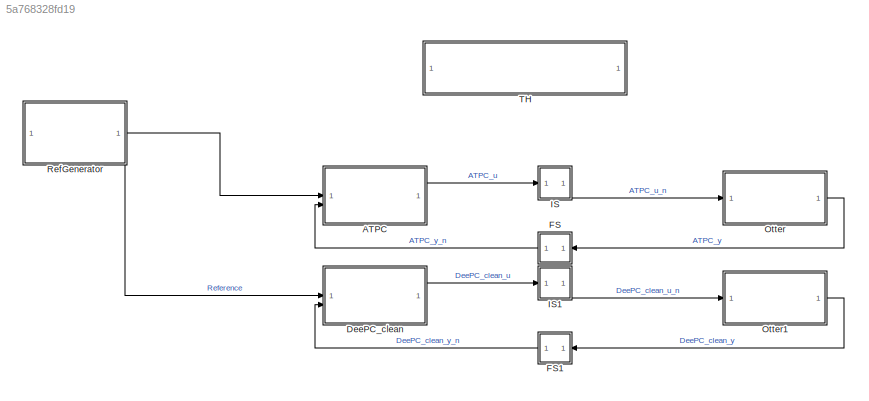
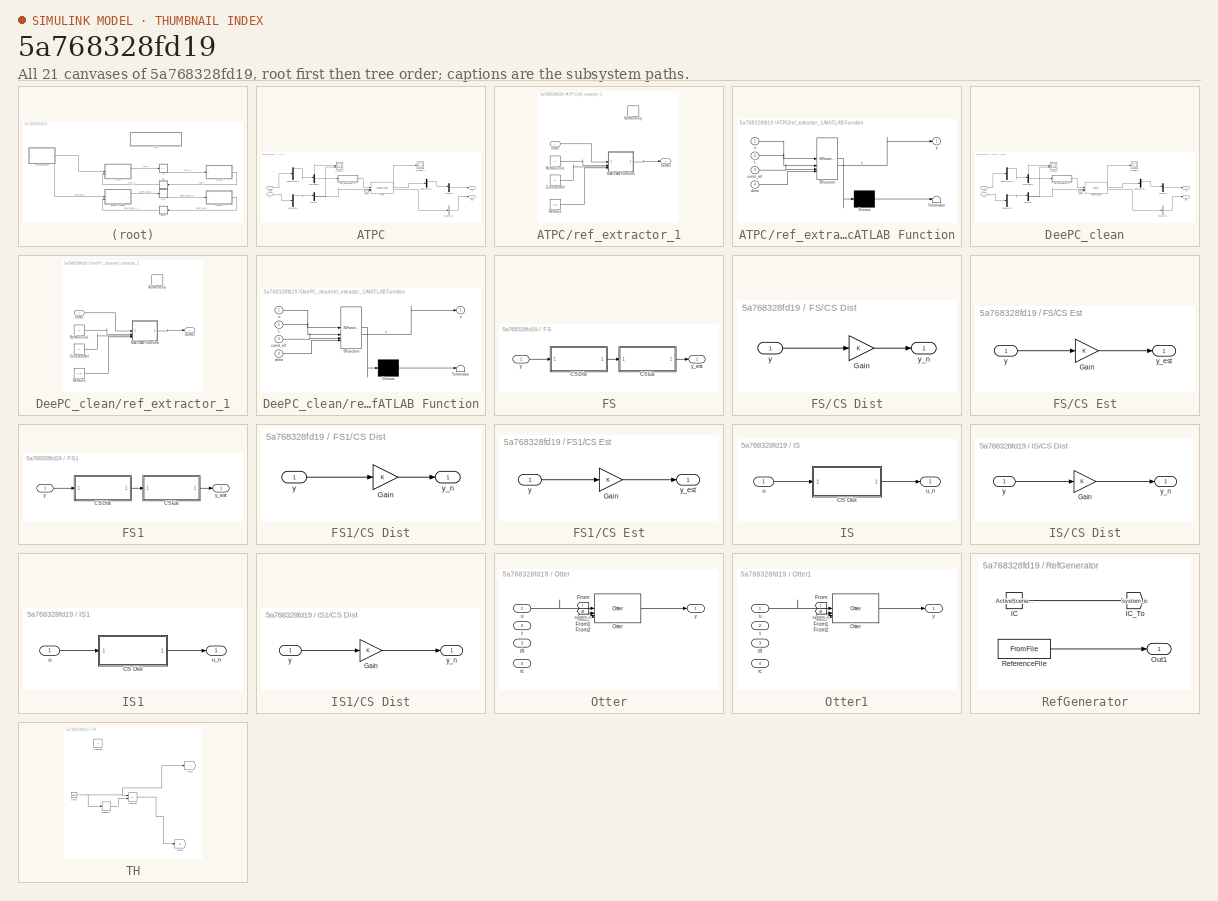
[diagram: thumbnail index - all 21 canvases of the model, root first then tree order]
MODEL slx_5a768328fd19
KIND model
CONFIG AbsTol = auto
CONFIG EnableMultiTasking = off
CONFIG FixedStep = 0.05
CONFIG InitFcn = on_model_start
CONFIG MaxStep = auto
CONFIG MinStep = auto
CONFIG PostLoadFcn = on_model_load
CONFIG RelTol = 1e-3
CONFIG SampleTimeConstraint = Unconstrained
CONFIG SolverName = FixedStepAuto
CONFIG StartTime = 0.0
CONFIG StopFcn = on_simulation_done
CONFIG StopTime = 10.0
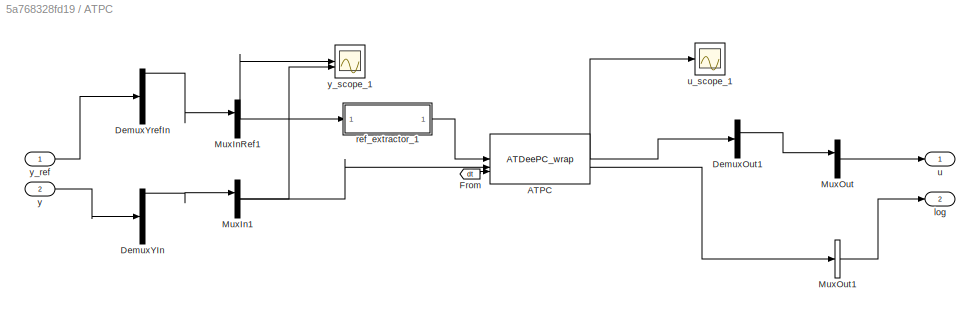
BLOCK [SubSystem] ATPC
  Tag = __cs_template;__cs_comptype:ctl
BLOCK [Reference] ATPC/ATPC  REF=data_driven_lib_ctl/ATDeePC_wrap
  SourceBlock = data_driven_lib_ctl/ATDeePC_wrap
  Tag = controller;__cs_comptype:ctl;__cs_compimpl:slx;
BLOCK [Demux] ATPC/DemuxOut1
  Outputs = 1
BLOCK [Demux] ATPC/DemuxYIn
  Outputs = 12
BLOCK [Demux] ATPC/DemuxYrefIn
  Outputs = 12
BLOCK [From] ATPC/From
  GotoTag = dt
  TagVisibility = global
BLOCK [Mux] ATPC/MuxIn1
  DisplayOption = bar
  Inputs = 1
BLOCK [Mux] ATPC/MuxInRef1
  DisplayOption = bar
  Inputs = 1
BLOCK [Mux] ATPC/MuxOut
  DisplayOption = bar
  Inputs = 2
BLOCK [BusCreator] ATPC/MuxOut1
  DisplayOption = bar
  InheritFromInputs = on
  Inputs = 1
BLOCK [Outport] ATPC/log
  Port = 2
BLOCK [SubSystem] ATPC/ref_extractor_1
BLOCK [Constant] ATPC/ref_extractor_1/ConstantRef
  Value = 0
BLOCK [Inport] ATPC/ref_extractor_1/InRef
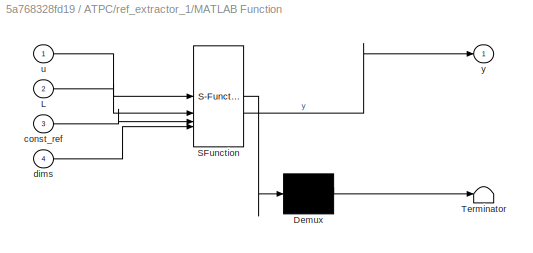
BLOCK [SubSystem] ATPC/ref_extractor_1/MATLAB Function
  ErrorFcn = Stateflow.Translate.translate
  PermitHierarchicalResolution = ExplicitOnly
  SFBlockType = MATLAB Function
  TreatAsAtomicUnit = on
BLOCK [Demux] ATPC/ref_extractor_1/MATLAB Function/ Demux 
  Outputs = 1
BLOCK [S-Function] ATPC/ref_extractor_1/MATLAB Function/ SFunction 
  EnableBusSupport = off
  FunctionName = sf_sfun
  Parameters = GlobalReference
  PortCounts = [4 2]
  SFcnIsStateOwnerBlock = off
  SFunctionDeploymentMode = off
  Tag = Stateflow S-Function 7
BLOCK [Terminator] ATPC/ref_extractor_1/MATLAB Function/ Terminator 
BLOCK [Inport] ATPC/ref_extractor_1/MATLAB Function/L
  Port = 2
BLOCK [Inport] ATPC/ref_extractor_1/MATLAB Function/const_ref
  Port = 3
BLOCK [Inport] ATPC/ref_extractor_1/MATLAB Function/dims
  Port = 4
BLOCK [Inport] ATPC/ref_extractor_1/MATLAB Function/u
BLOCK [Outport] ATPC/ref_extractor_1/MATLAB Function/y
BLOCK [Outport] ATPC/ref_extractor_1/OutRef
BLOCK [Constant] ATPC/ref_extractor_1/RefDims
  Value = [1 2]
BLOCK [Constant] ATPC/ref_extractor_1/RefHorizonL
BLOCK [DataStoreMemory] ATPC/ref_extractor_1/RefMemory
  DataStoreName = ref
  OutDataTypeStr = double
  ShowAdditionalParam = off
  SignalType = real
  WriteAfterWriteMsg = warning
BLOCK [Outport] ATPC/u
  PortDimensions = 2
BLOCK [Scope] ATPC/u_scope_1
  Floating = off
  NumInputPorts = 1
BLOCK [Inport] ATPC/y
  Port = 2
  PortDimensions = 12
BLOCK [Inport] ATPC/y_ref
  PortDimensions = 12
BLOCK [Scope] ATPC/y_scope_1
  Floating = off
  NumInputPorts = 2
BLOCK [SubSystem] DeePC_clean
  Tag = __cs_template;__cs_comptype:ctl
BLOCK [Reference] DeePC_clean/DeePC_clean  REF=data_driven_lib_ctl/DeePC
  SourceBlock = data_driven_lib_ctl/DeePC
  Tag = __cs_comptype:ctl;__cs_compimpl:mat;
BLOCK [Demux] DeePC_clean/DemuxOut1
  Outputs = 1
BLOCK [Demux] DeePC_clean/DemuxYIn
  Outputs = 12
BLOCK [Demux] DeePC_clean/DemuxYrefIn
  Outputs = 12
BLOCK [From] DeePC_clean/From
  GotoTag = dt
  TagVisibility = global
BLOCK [Mux] DeePC_clean/MuxIn1
  DisplayOption = bar
  Inputs = 1
BLOCK [Mux] DeePC_clean/MuxInRef1
  DisplayOption = bar
  Inputs = 1
BLOCK [Mux] DeePC_clean/MuxOut
  DisplayOption = bar
  Inputs = 2
BLOCK [BusCreator] DeePC_clean/MuxOut1
  DisplayOption = bar
  InheritFromInputs = on
  Inputs = 1
BLOCK [Outport] DeePC_clean/log
  Port = 2
BLOCK [SubSystem] DeePC_clean/ref_extractor_1
BLOCK [Constant] DeePC_clean/ref_extractor_1/ConstantRef
  Value = 0
BLOCK [Inport] DeePC_clean/ref_extractor_1/InRef
BLOCK [SubSystem] DeePC_clean/ref_extractor_1/MATLAB Function
  ErrorFcn = Stateflow.Translate.translate
  PermitHierarchicalResolution = ExplicitOnly
  SFBlockType = MATLAB Function
  TreatAsAtomicUnit = on
BLOCK [Demux] DeePC_clean/ref_extractor_1/MATLAB Function/ Demux 
  Outputs = 1
BLOCK [S-Function] DeePC_clean/ref_extractor_1/MATLAB Function/ SFunction 
  EnableBusSupport = off
  FunctionName = sf_sfun
  Parameters = GlobalReference
  PortCounts = [4 2]
  SFcnIsStateOwnerBlock = off
  SFunctionDeploymentMode = off
  Tag = Stateflow S-Function 1
BLOCK [Terminator] DeePC_clean/ref_extractor_1/MATLAB Function/ Terminator 
BLOCK [Inport] DeePC_clean/ref_extractor_1/MATLAB Function/L
  Port = 2
BLOCK [Inport] DeePC_clean/ref_extractor_1/MATLAB Function/const_ref
  Port = 3
BLOCK [Inport] DeePC_clean/ref_extractor_1/MATLAB Function/dims
  Port = 4
BLOCK [Inport] DeePC_clean/ref_extractor_1/MATLAB Function/u
BLOCK [Outport] DeePC_clean/ref_extractor_1/MATLAB Function/y
BLOCK [Outport] DeePC_clean/ref_extractor_1/OutRef
BLOCK [Constant] DeePC_clean/ref_extractor_1/RefDims
  Value = [1 2]
BLOCK [Constant] DeePC_clean/ref_extractor_1/RefHorizonL
BLOCK [DataStoreMemory] DeePC_clean/ref_extractor_1/RefMemory
  DataStoreName = ref
  OutDataTypeStr = double
  ShowAdditionalParam = off
  SignalType = real
  WriteAfterWriteMsg = warning
BLOCK [Outport] DeePC_clean/u
  PortDimensions = 2
BLOCK [Scope] DeePC_clean/u_scope_1
  Floating = off
  NumInputPorts = 1
BLOCK [Inport] DeePC_clean/y
  Port = 2
  PortDimensions = 12
BLOCK [Inport] DeePC_clean/y_ref
  PortDimensions = 12
BLOCK [Scope] DeePC_clean/y_scope_1
  Floating = off
  NumInputPorts = 2
BLOCK [SubSystem] FS
  NameLocation = top
BLOCK [SubSystem] FS/CS Dist
BLOCK [Gain] FS/CS Dist/Gain
BLOCK [Inport] FS/CS Dist/y
BLOCK [Outport] FS/CS Dist/y_n
BLOCK [SubSystem] FS/CS Est
BLOCK [Gain] FS/CS Est/Gain
BLOCK [Inport] FS/CS Est/y
BLOCK [Outport] FS/CS Est/y_est
BLOCK [Inport] FS/y
BLOCK [Outport] FS/y_est
BLOCK [SubSystem] FS1
  NameLocation = top
BLOCK [SubSystem] FS1/CS Dist
BLOCK [Gain] FS1/CS Dist/Gain
BLOCK [Inport] FS1/CS Dist/y
BLOCK [Outport] FS1/CS Dist/y_n
BLOCK [SubSystem] FS1/CS Est
BLOCK [Gain] FS1/CS Est/Gain
BLOCK [Inport] FS1/CS Est/y
BLOCK [Outport] FS1/CS Est/y_est
BLOCK [Inport] FS1/y
BLOCK [Outport] FS1/y_est
BLOCK [SubSystem] IS
BLOCK [SubSystem] IS/CS Dist
BLOCK [Gain] IS/CS Dist/Gain
BLOCK [Inport] IS/CS Dist/y
BLOCK [Outport] IS/CS Dist/y_n
BLOCK [Inport] IS/u
BLOCK [Outport] IS/u_n
BLOCK [SubSystem] IS1
BLOCK [SubSystem] IS1/CS Dist
BLOCK [Gain] IS1/CS Dist/Gain
BLOCK [Inport] IS1/CS Dist/y
BLOCK [Outport] IS1/CS Dist/y_n
BLOCK [Inport] IS1/u
BLOCK [Outport] IS1/u_n
BLOCK [SubSystem] Otter
  Tag = __cs_template;__cs_comptype:sys
BLOCK [From] Otter/From
  GotoTag = t
  TagVisibility = global
BLOCK [From] Otter/From1
  GotoTag = dt
  TagVisibility = global
BLOCK [From] Otter/From2
  GotoTag = system_ic
  TagVisibility = global
BLOCK [Reference] Otter/Otter  REF=marine_lib_sys/Otter
  SourceBlock = marine_lib_sys/Otter
  Tag = system;__cs_slx_sys;__cs_comptype:sys;__cs_compimpl:slx;
BLOCK [Inport] Otter/dt
  Port = 3
BLOCK [Inport] Otter/ic
  Port = 4
BLOCK [Inport] Otter/t
  Port = 2
BLOCK [Inport] Otter/u
BLOCK [Outport] Otter/y
BLOCK [SubSystem] Otter1
  Tag = __cs_template;__cs_comptype:sys
BLOCK [From] Otter1/From
  GotoTag = t
  TagVisibility = global
BLOCK [From] Otter1/From1
  GotoTag = dt
  TagVisibility = global
BLOCK [From] Otter1/From2
  GotoTag = system_ic
  TagVisibility = global
BLOCK [Reference] Otter1/Otter  REF=marine_lib_sys/Otter
  SourceBlock = marine_lib_sys/Otter
  Tag = system;__cs_slx_sys;__cs_comptype:sys;__cs_compimpl:slx;
BLOCK [Inport] Otter1/dt
  Port = 3
BLOCK [Inport] Otter1/ic
  Port = 4
BLOCK [Inport] Otter1/t
  Port = 2
BLOCK [Inport] Otter1/u
BLOCK [Outport] Otter1/y
BLOCK [SubSystem] RefGenerator
  OpenFcn = on_reference_generator_open();
BLOCK [Constant] RefGenerator/IC
  Value = ActiveScenario.SystemIc
BLOCK [Goto] RefGenerator/IC_To
  GotoTag = system_ic
  TagVisibility = global
BLOCK [Outport] RefGenerator/Out1
BLOCK [FromFile] RefGenerator/ReferenceFile
  SampleTime = 0
BLOCK [SubSystem] TH
BLOCK [Clock] TH/Clock
BLOCK [Constant] TH/Constant
BLOCK [Goto] TH/Goto
  GotoTag = t
  TagVisibility = global
BLOCK [Goto] TH/Goto1
  GotoTag = dt
  TagVisibility = global
BLOCK [Memory] TH/Memory
BLOCK [Sum] TH/Subtract
  IconShape = rectangular
  Inputs = +-
NET ATPC/ATPC:1 -> ATPC/DemuxOut1:1, ATPC/u_scope_1:1
LINE ATPC/ATPC:2 -> ATPC/MuxOut1:1
LINE ATPC/DemuxOut1:1 -> ATPC/MuxOut:1
LINE ATPC/DemuxYIn:1 -> ATPC/MuxIn1:1
LINE ATPC/DemuxYrefIn:1 -> ATPC/MuxInRef1:1
LINE ATPC/From:1 -> ATPC/ATPC:3
NET ATPC/MuxIn1:1 -> ATPC/ATPC:2, ATPC/y_scope_1:2
NET ATPC/MuxInRef1:1 -> ATPC/ref_extractor_1:1, ATPC/y_scope_1:1
LINE ATPC/MuxOut1:1 -> ATPC/log:1
LINE ATPC/MuxOut:1 -> ATPC/u:1
LINE ATPC/ref_extractor_1/ConstantRef:1 -> ATPC/ref_extractor_1/MATLAB Function:3
LINE ATPC/ref_extractor_1/InRef:1 -> ATPC/ref_extractor_1/MATLAB Function:1
LINE ATPC/ref_extractor_1/MATLAB Function:1 -> ATPC/ref_extractor_1/OutRef:1
LINE ATPC/ref_extractor_1/RefDims:1 -> ATPC/ref_extractor_1/MATLAB Function:4
LINE ATPC/ref_extractor_1/RefHorizonL:1 -> ATPC/ref_extractor_1/MATLAB Function:2
LINE ATPC/ref_extractor_1:1 -> ATPC/ATPC:1
LINE ATPC/y:1 -> ATPC/DemuxYIn:1
LINE ATPC/y_ref:1 -> ATPC/DemuxYrefIn:1
LINE ATPC:1 -> IS:1
NET DeePC_clean/DeePC_clean:1 -> DeePC_clean/DemuxOut1:1, DeePC_clean/u_scope_1:1
LINE DeePC_clean/DeePC_clean:2 -> DeePC_clean/MuxOut1:1
LINE DeePC_clean/DemuxOut1:1 -> DeePC_clean/MuxOut:1
LINE DeePC_clean/DemuxYIn:1 -> DeePC_clean/MuxIn1:1
LINE DeePC_clean/DemuxYrefIn:1 -> DeePC_clean/MuxInRef1:1
LINE DeePC_clean/From:1 -> DeePC_clean/DeePC_clean:3
NET DeePC_clean/MuxIn1:1 -> DeePC_clean/DeePC_clean:2, DeePC_clean/y_scope_1:2
NET DeePC_clean/MuxInRef1:1 -> DeePC_clean/ref_extractor_1:1, DeePC_clean/y_scope_1:1
LINE DeePC_clean/MuxOut1:1 -> DeePC_clean/log:1
LINE DeePC_clean/MuxOut:1 -> DeePC_clean/u:1
LINE DeePC_clean/ref_extractor_1/ConstantRef:1 -> DeePC_clean/ref_extractor_1/MATLAB Function:3
LINE DeePC_clean/ref_extractor_1/InRef:1 -> DeePC_clean/ref_extractor_1/MATLAB Function:1
LINE DeePC_clean/ref_extractor_1/MATLAB Function:1 -> DeePC_clean/ref_extractor_1/OutRef:1
LINE DeePC_clean/ref_extractor_1/RefDims:1 -> DeePC_clean/ref_extractor_1/MATLAB Function:4
LINE DeePC_clean/ref_extractor_1/RefHorizonL:1 -> DeePC_clean/ref_extractor_1/MATLAB Function:2
LINE DeePC_clean/ref_extractor_1:1 -> DeePC_clean/DeePC_clean:1
LINE DeePC_clean/y:1 -> DeePC_clean/DemuxYIn:1
LINE DeePC_clean/y_ref:1 -> DeePC_clean/DemuxYrefIn:1
LINE DeePC_clean:1 -> IS1:1
LINE FS/CS Dist/Gain:1 -> FS/CS Dist/y_n:1
LINE FS/CS Dist/y:1 -> FS/CS Dist/Gain:1
LINE FS/CS Dist:1 -> FS/CS Est:1
LINE FS/CS Est/Gain:1 -> FS/CS Est/y_est:1
LINE FS/CS Est/y:1 -> FS/CS Est/Gain:1
LINE FS/CS Est:1 -> FS/y_est:1
LINE FS/y:1 -> FS/CS Dist:1
LINE FS1/CS Dist/Gain:1 -> FS1/CS Dist/y_n:1
LINE FS1/CS Dist/y:1 -> FS1/CS Dist/Gain:1
LINE FS1/CS Dist:1 -> FS1/CS Est:1
LINE FS1/CS Est/Gain:1 -> FS1/CS Est/y_est:1
LINE FS1/CS Est/y:1 -> FS1/CS Est/Gain:1
LINE FS1/CS Est:1 -> FS1/y_est:1
LINE FS1/y:1 -> FS1/CS Dist:1
LINE FS1:1 -> DeePC_clean:2
LINE FS:1 -> ATPC:2
LINE IS/CS Dist/Gain:1 -> IS/CS Dist/y_n:1
LINE IS/CS Dist/y:1 -> IS/CS Dist/Gain:1
LINE IS/CS Dist:1 -> IS/u_n:1
LINE IS/u:1 -> IS/CS Dist:1
LINE IS1/CS Dist/Gain:1 -> IS1/CS Dist/y_n:1
LINE IS1/CS Dist/y:1 -> IS1/CS Dist/Gain:1
LINE IS1/CS Dist:1 -> IS1/u_n:1
LINE IS1/u:1 -> IS1/CS Dist:1
LINE IS1:1 -> Otter1:1
LINE IS:1 -> Otter:1
LINE Otter/From1:1 -> Otter/Otter:3
LINE Otter/From2:1 -> Otter/Otter:4
LINE Otter/From:1 -> Otter/Otter:2
LINE Otter/Otter:1 -> Otter/y:1
LINE Otter/u:1 -> Otter/Otter:1
LINE Otter1/From1:1 -> Otter1/Otter:3
LINE Otter1/From2:1 -> Otter1/Otter:4
LINE Otter1/From:1 -> Otter1/Otter:2
LINE Otter1/Otter:1 -> Otter1/y:1
LINE Otter1/u:1 -> Otter1/Otter:1
LINE Otter1:1 -> FS1:1
LINE Otter:1 -> FS:1
LINE RefGenerator/IC:1 -> RefGenerator/IC_To:1
LINE RefGenerator/ReferenceFile:1 -> RefGenerator/Out1:1
NET RefGenerator:1 -> ATPC:1, DeePC_clean:1
NET TH/Clock:1 -> TH/Goto:1, TH/Memory:1, TH/Subtract:1
LINE TH/Memory:1 -> TH/Subtract:2
LINE TH/Subtract:1 -> TH/Goto1:1
note: NET lines group one-source signal fan-out (src -> all destinations, sorted); 1:1 wires keep LINE
CHART DeePC_clean/ref_extractor_1/MATLAB Function states=1 transitions=1
  STATE_LABEL 'eML_blk_kernel()'
  STATE_LABEL "SCRIPT:\nfunction y = fcn(u, L, const_ref, dims, GlobalReference)\n\npersistent cnt\nglobal ref\n\nif isempty(cnt)\n    cnt = 0;\nend\n\nif GlobalReference == 0\n    y = repmat(u', 1);\n    return;\nend\n\n\ncnt = cnt+1;\n\nhorizon_end = cnt+L-1;\nif L > 1 \n   if horizon_end > length(GlobalReference)\n        if size(ref, 1) == size(u, 1)\n            y = permute(ref, [2, 1]);\n        else\n            y = ref;\n       ...<+621ch>"
CHART ATPC/ref_extractor_1/MATLAB Function states=1 transitions=1
  STATE_LABEL 'eML_blk_kernel()'
  STATE_LABEL "SCRIPT:\nfunction y = fcn(u, L, const_ref, dims, GlobalReference)\n\npersistent cnt\nglobal ref\n\nif isempty(cnt)\n    cnt = 0;\nend\n\nif GlobalReference == 0\n    y = repmat(u', 1);\n    return;\nend\n\n\ncnt = cnt+1;\n\nhorizon_end = cnt+L-1;\nif L > 1 \n   if horizon_end > length(GlobalReference)\n        if size(ref, 1) == size(u, 1)\n            y = permute(ref, [2, 1]);\n        else\n            y = ref;\n       ...<+621ch>"
CHART  states=0 transitions=0
CHART  states=0 transitions=0
